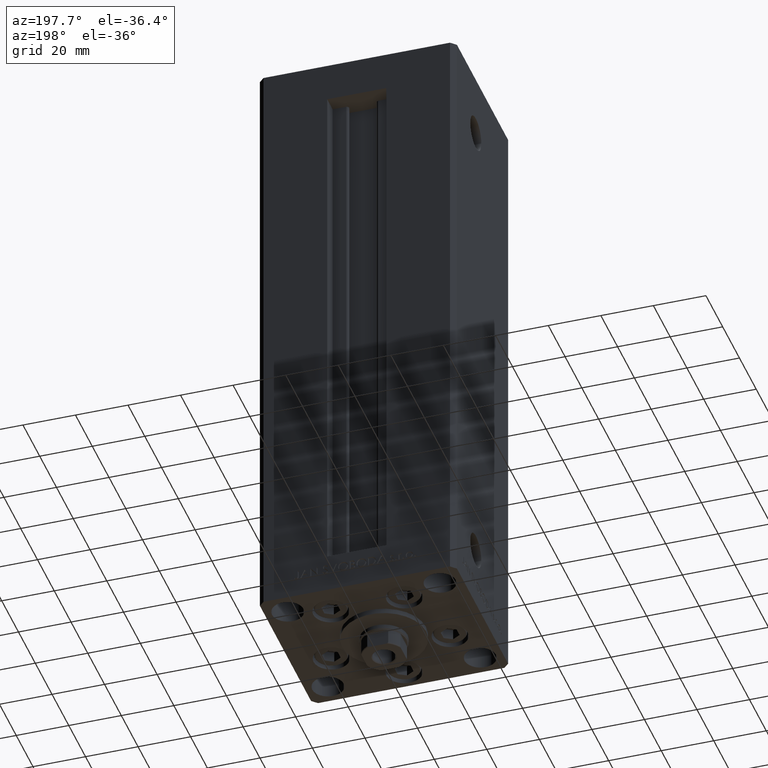
[diagram: clean part render]
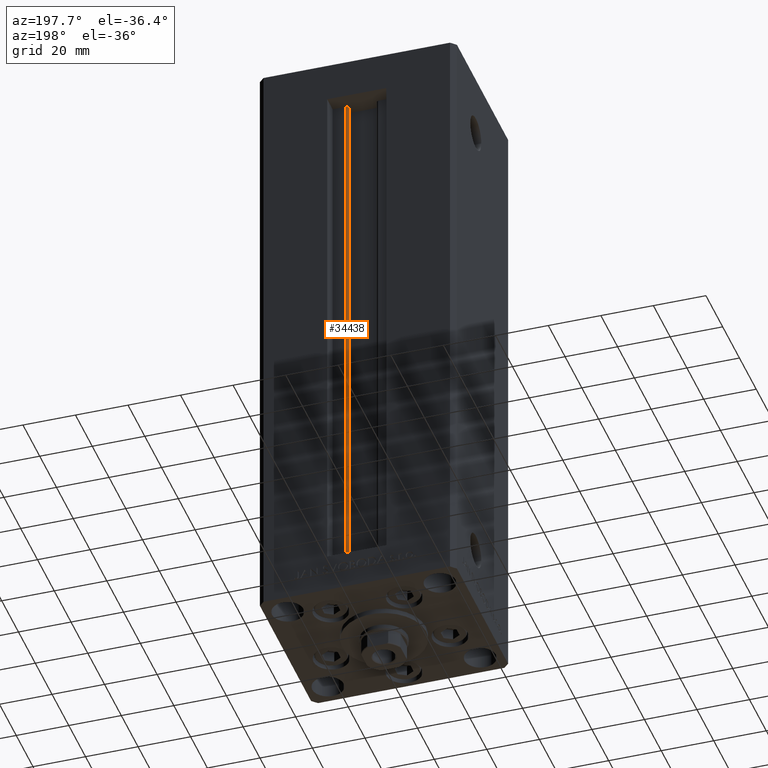
[diagram: same view with one face highlighted and labeled with its STEP entity id]
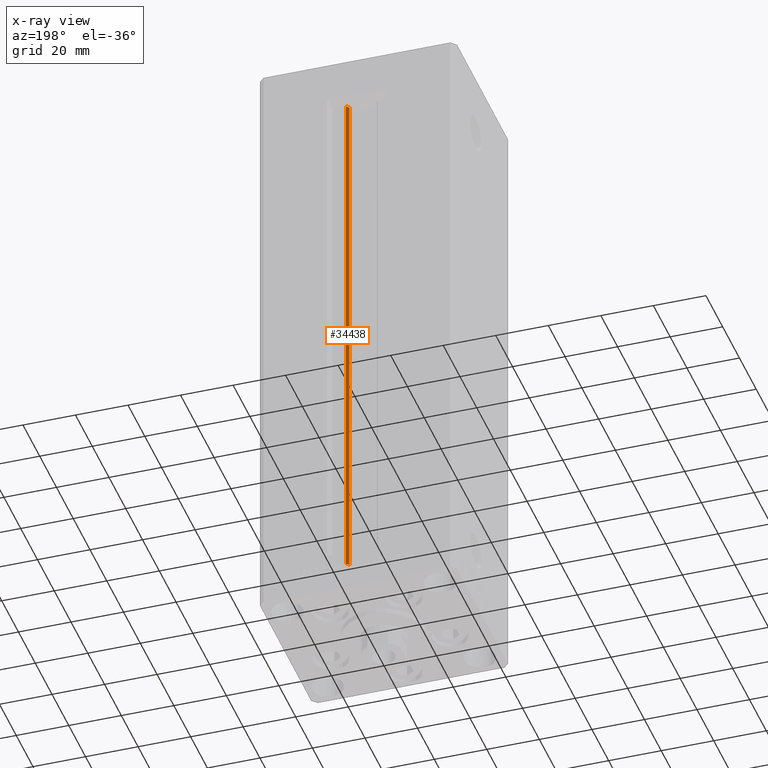
[diagram: x-ray of the same camera — body ghosted, the highlighted face saturated]
A machine part, auxiliary view. The second image highlights one B-rep face of the part: STEP entity #34438.
The next image is the same camera in x-ray: the body ghosted, the highlighted face saturated — about 0% of this face is hidden behind the body in this view.
In plain terms, the highlighted cylindrical surface (edge-blend (fillet) strip) has radius 0.9333 mm, axis along (0, 0, 1).
Its self-contained STEP definition (entity closure, byte-faithful):
#1954 = LINE ( 'NONE', #4974, #12831 ) ;
#3521 = VERTEX_POINT ( 'NONE', #46734 ) ;
#3653 = DIRECTION ( 'NONE',  ( 1.000000000000000000, 0.000000000000000000, 0.000000000000000000 ) ) ;
#4949 = EDGE_CURVE ( 'NONE', #14927, #48083, #21214, .T. ) ;
#4974 = CARTESIAN_POINT ( 'NONE',  ( 6.183333333334001480, 25.99999999999999289, 0.000000000000000000 ) ) ;
#9170 = VERTEX_POINT ( 'NONE', #32909 ) ;
#11506 = DIRECTION ( 'NONE',  ( -0.000000000000000000, -0.000000000000000000, -1.000000000000000000 ) ) ;
#12831 = VECTOR ( 'NONE', #31857, 1000.000000000000000 ) ;
#14927 = VERTEX_POINT ( 'NONE', #35146 ) ;
#15419 = CARTESIAN_POINT ( 'NONE',  ( 6.183333333334001480, 25.06666666666599141, 206.0000000000000000 ) ) ;
#15747 = DIRECTION ( 'NONE',  ( -0.000000000000000000, -0.000000000000000000, 1.000000000000000000 ) ) ;
#15804 = CIRCLE ( 'NONE', #19809, 0.9333333333340008142 ) ;
#19809 = AXIS2_PLACEMENT_3D ( 'NONE', #15419, #38059, #3653 ) ;
#20659 = ORIENTED_EDGE ( 'NONE', *, *, #4949, .T. ) ;
#21213 = ORIENTED_EDGE ( 'NONE', *, *, #32066, .F. ) ;
#21214 = LINE ( 'NONE', #32541, #30659 ) ;
#23807 = CARTESIAN_POINT ( 'NONE',  ( 6.183333333334001480, 25.06666666666599141, 0.000000000000000000 ) ) ;
#24022 = CYLINDRICAL_SURFACE ( 'NONE', #30557, 0.9333333333340008142 ) ;
#25424 = EDGE_CURVE ( 'NONE', #48083, #9170, #15804, .T. ) ;
#25981 = ORIENTED_EDGE ( 'NONE', *, *, #25424, .T. ) ;
#30468 = EDGE_CURVE ( 'NONE', #14927, #3521, #42497, .T. ) ;
#30557 = AXIS2_PLACEMENT_3D ( 'NONE', #46411, #15747, #46918 ) ;
#30659 = VECTOR ( 'NONE', #40575, 1000.000000000000000 ) ;
#31570 = FACE_OUTER_BOUND ( 'NONE', #41638, .T. ) ;
#31857 = DIRECTION ( 'NONE',  ( -0.000000000000000000, -0.000000000000000000, 1.000000000000000000 ) ) ;
#32066 = EDGE_CURVE ( 'NONE', #3521, #9170, #1954, .T. ) ;
#32350 = ORIENTED_EDGE ( 'NONE', *, *, #30468, .F. ) ;
#32541 = CARTESIAN_POINT ( 'NONE',  ( 5.375042956467947164, 24.59999999999899245, 0.000000000000000000 ) ) ;
#32909 = CARTESIAN_POINT ( 'NONE',  ( 6.183333333334001480, 25.99999999999999289, 206.0000000000000000 ) ) ;
#33684 = AXIS2_PLACEMENT_3D ( 'NONE', #23807, #11506, #39139 ) ;
#34438 = ADVANCED_FACE ( 'NONE', ( #31570 ), #24022, .T. ) ;
#35146 = CARTESIAN_POINT ( 'NONE',  ( 5.375042956467947164, 24.59999999999899245, 0.000000000000000000 ) ) ;
#37771 = CARTESIAN_POINT ( 'NONE',  ( 5.375042956467948052, 24.59999999999899245, 206.0000000000000000 ) ) ;
#38059 = DIRECTION ( 'NONE',  ( 0.000000000000000000, 0.000000000000000000, -1.000000000000000000 ) ) ;
#39139 = DIRECTION ( 'NONE',  ( 1.000000000000000000, 0.000000000000000000, 0.000000000000000000 ) ) ;
#40575 = DIRECTION ( 'NONE',  ( -0.000000000000000000, -0.000000000000000000, 1.000000000000000000 ) ) ;
#41638 = EDGE_LOOP ( 'NONE', ( #21213, #32350, #20659, #25981 ) ) ;
#42497 = CIRCLE ( 'NONE', #33684, 0.9333333333340008142 ) ;
#46411 = CARTESIAN_POINT ( 'NONE',  ( 6.183333333334001480, 25.06666666666599141, 0.000000000000000000 ) ) ;
#46734 = CARTESIAN_POINT ( 'NONE',  ( 6.183333333334001480, 25.99999999999999289, 0.000000000000000000 ) ) ;
#46918 = DIRECTION ( 'NONE',  ( 1.000000000000000000, 0.000000000000000000, 0.000000000000000000 ) ) ;
#48083 = VERTEX_POINT ( 'NONE', #37771 ) ;